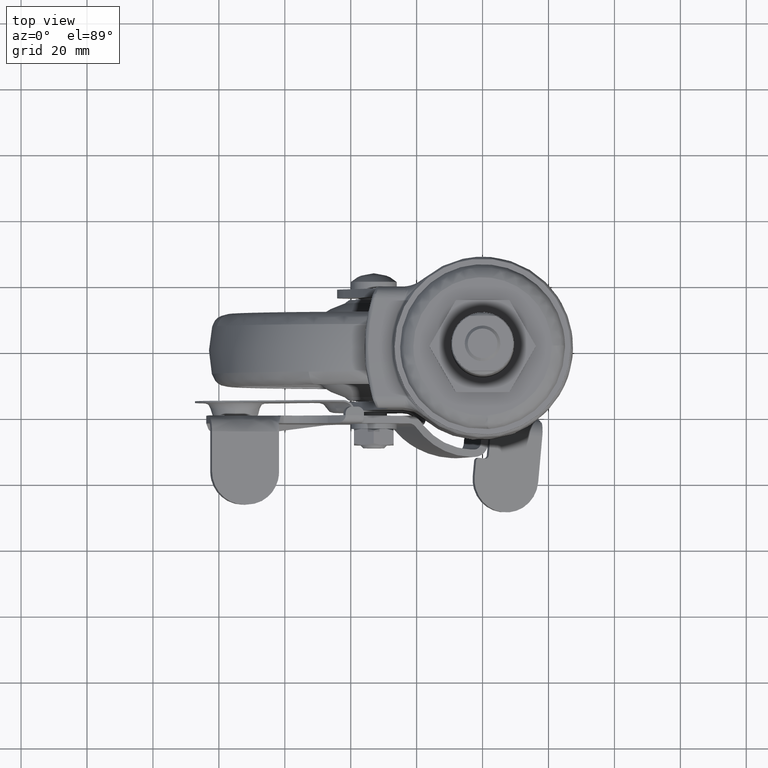
[diagram: clean part render]
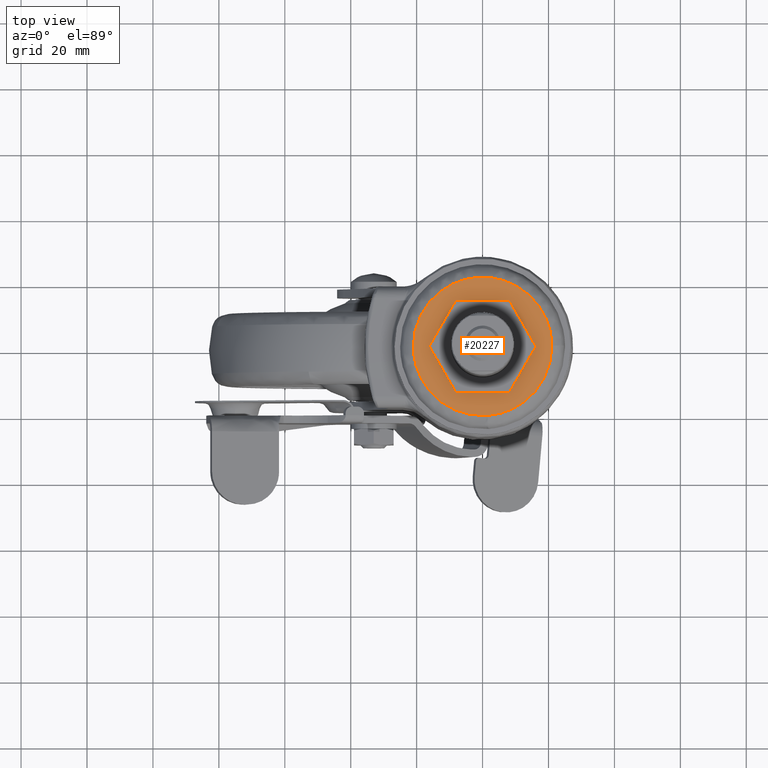
[diagram: same view with one face highlighted and labeled with its STEP entity id]
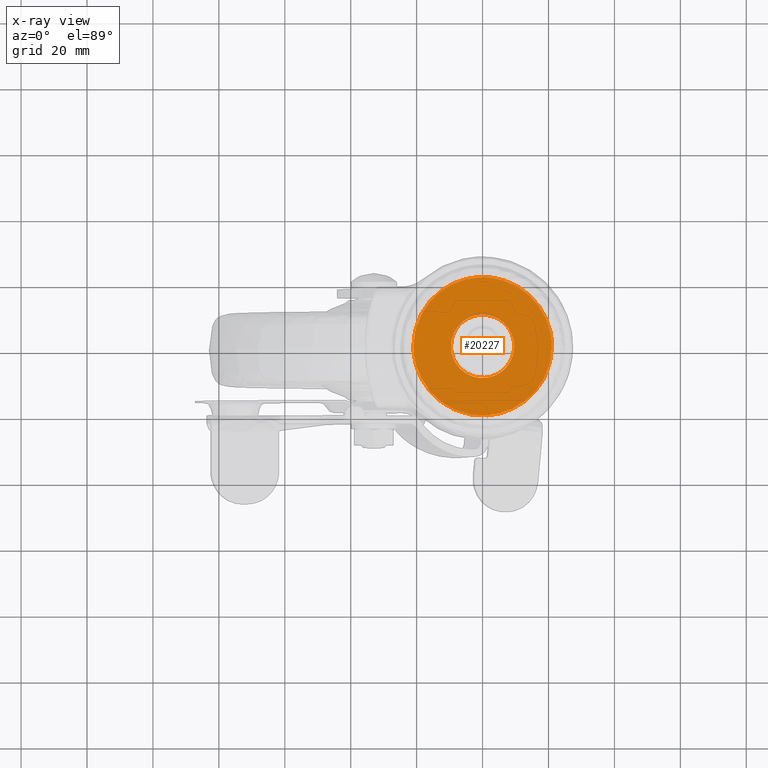
[diagram: x-ray of the same camera — body ghosted, the highlighted face saturated]
A machine part, top view. The second image highlights one B-rep face of the part: STEP entity #20227.
The next image is the same camera in x-ray: the body ghosted, the highlighted face saturated — about 1% of this face is hidden behind the body in this view.
In plain terms, the highlighted face is a freeform B-spline surface patch.
Its self-contained STEP definition (entity closure, byte-faithful):
#15587=CARTESIAN_POINT('',(-8.926698429834026,-3.531862843146473,-2.499304999999840));
#15588=VERTEX_POINT('',#15587);
#15594=CARTESIAN_POINT('',(0.753192596896211,-9.570407562468937,-2.499304999999839));
#15595=VERTEX_POINT('',#15594);
#15596=CARTESIAN_POINT('',(0.753192596896211,-9.570407562468937,-2.499304999999839));
#15597=CARTESIAN_POINT('',(0.377177632068906,-9.600000000000000,-2.499304999999839));
#15598=CARTESIAN_POINT('',(7.888609E-031,-9.600000000000000,-2.499304999999840));
#15599=CARTESIAN_POINT('',(-6.525830032624449,-9.600000000000000,-2.499304999999839));
#15600=CARTESIAN_POINT('',(-8.926698429834026,-3.531862843146472,-2.499304999999840));
#15608=(BOUNDED_CURVE()B_SPLINE_CURVE(2,(#15596,#15597,#15598,#15599,#15600),.UNSPECIFIED.,.F.,.U.)B_SPLINE_CURVE_WITH_KNOTS((3,2,3),(0.736331564333938,0.750000000000000,0.937532549938450),.UNSPECIFIED.)CURVE()GEOMETRIC_REPRESENTATION_ITEM()RATIONAL_B_SPLINE_CURVE((0.969723906496693,0.983986431526490,1.0,0.780291951264931,0.890203187500172))REPRESENTATION_ITEM(''));
#15609=EDGE_CURVE('',#15595,#15588,#15608,.T.);
#15703=CARTESIAN_POINT('',(9.600000000000000,0.0,-2.499304999999840));
#15704=VERTEX_POINT('',#15703);
#15705=CARTESIAN_POINT('',(9.600000000000000,0.0,-2.499304999999840));
#15706=CARTESIAN_POINT('',(9.600000000000000,-8.874162413181239,-2.499304999999840));
#15707=CARTESIAN_POINT('',(0.753192596896211,-9.570407562468937,-2.499304999999839));
#15715=(BOUNDED_CURVE()B_SPLINE_CURVE(2,(#15705,#15706,#15707),.UNSPECIFIED.,.F.,.U.)B_SPLINE_CURVE_WITH_KNOTS((3,3),(0.500000000000000,0.736331564333938),.UNSPECIFIED.)CURVE()GEOMETRIC_REPRESENTATION_ITEM()RATIONAL_B_SPLINE_CURVE((1.0,0.723120349660058,0.969723906496693))REPRESENTATION_ITEM(''));
#15716=EDGE_CURVE('',#15704,#15595,#15715,.T.);
#15718=CARTESIAN_POINT('',(-9.600000000000000,0.0,-2.499304999999840));
#15719=VERTEX_POINT('',#15718);
#15720=CARTESIAN_POINT('',(-9.600000000000000,0.0,-2.499304999999840));
#15721=CARTESIAN_POINT('',(-9.600000000000000,9.600000000000000,-2.499304999999840));
#15722=CARTESIAN_POINT('',(7.888609E-031,9.600000000000000,-2.499304999999840));
#15723=CARTESIAN_POINT('',(9.600000000000000,9.600000000000000,-2.499304999999840));
#15724=CARTESIAN_POINT('',(9.600000000000000,0.0,-2.499304999999840));
#15732=(BOUNDED_CURVE()B_SPLINE_CURVE(2,(#15720,#15721,#15722,#15723,#15724),.UNSPECIFIED.,.F.,.U.)B_SPLINE_CURVE_WITH_KNOTS((3,2,3),(0.0,0.250000000000000,0.500000000000000),.UNSPECIFIED.)CURVE()GEOMETRIC_REPRESENTATION_ITEM()RATIONAL_B_SPLINE_CURVE((1.0,0.707106781186547,1.0,0.707106781186547,1.0))REPRESENTATION_ITEM(''));
#15733=EDGE_CURVE('',#15719,#15704,#15732,.T.);
#15735=CARTESIAN_POINT('',(-8.926698429834026,-3.531862843146473,-2.499304999999840));
#15736=CARTESIAN_POINT('',(-9.600000000000000,-1.830109310782688,-2.499304999999840));
#15737=CARTESIAN_POINT('',(-9.600000000000000,0.0,-2.499304999999840));
#15745=(BOUNDED_CURVE()B_SPLINE_CURVE(2,(#15735,#15736,#15737),.UNSPECIFIED.,.F.,.U.)B_SPLINE_CURVE_WITH_KNOTS((3,3),(0.937532549938450,1.0),.UNSPECIFIED.)CURVE()GEOMETRIC_REPRESENTATION_ITEM()RATIONAL_B_SPLINE_CURVE((0.890203187500172,0.926814829921616,1.0))REPRESENTATION_ITEM(''));
#15746=EDGE_CURVE('',#15588,#15719,#15745,.T.);
#18544=CARTESIAN_POINT('',(1.464398285108659,-20.948879163375778,-2.499304999999881));
#18545=VERTEX_POINT('',#18544);
#18546=CARTESIAN_POINT('',(-21.0,0.0,-2.499304999999880));
#18547=VERTEX_POINT('',#18546);
#18548=CARTESIAN_POINT('',(1.464398285108658,-20.948879163375775,-2.499304999999882));
#18549=CARTESIAN_POINT('',(0.733091434502304,-20.999999999999996,-2.499304999999880));
#18550=CARTESIAN_POINT('',(0.0,-21.0,-2.499304999999880));
#18551=CARTESIAN_POINT('',(-21.000000000000007,-21.000000000000007,-2.499304999999880));
#18552=CARTESIAN_POINT('',(-21.0,0.0,-2.499304999999880));
#18560=(BOUNDED_CURVE()B_SPLINE_CURVE(2,(#18548,#18549,#18550,#18551,#18552),.UNSPECIFIED.,.F.,.U.)B_SPLINE_CURVE_WITH_KNOTS((3,2,3),(0.737833686516594,0.750000000000000,1.0),.UNSPECIFIED.)CURVE()GEOMETRIC_REPRESENTATION_ITEM()RATIONAL_B_SPLINE_CURVE((0.972879876347851,0.985746277131006,1.0,0.707106781186547,1.0))REPRESENTATION_ITEM(''));
#18561=EDGE_CURVE('',#18545,#18547,#18560,.T.);
#18563=CARTESIAN_POINT('',(20.998341934869320,0.263886838149581,-2.499304999999881));
#18564=VERTEX_POINT('',#18563);
#18565=CARTESIAN_POINT('',(-21.0,0.0,-2.499304999999880));
#18566=CARTESIAN_POINT('',(-21.000000000000007,21.000000000000007,-2.499304999999880));
#18567=CARTESIAN_POINT('',(0.0,21.0,-2.499304999999880));
#18568=CARTESIAN_POINT('',(20.737750527033732,21.000000000000007,-2.499304999999880));
#18569=CARTESIAN_POINT('',(20.998341934869320,0.263886838149581,-2.499304999999881));
#18577=(BOUNDED_CURVE()B_SPLINE_CURVE(2,(#18565,#18566,#18567,#18568,#18569),.UNSPECIFIED.,.F.,.U.)B_SPLINE_CURVE_WITH_KNOTS((3,2,3),(0.0,0.250000000000000,0.497784295913080),.UNSPECIFIED.)CURVE()GEOMETRIC_REPRESENTATION_ITEM()RATIONAL_B_SPLINE_CURVE((1.0,0.707106781186547,1.0,0.709702639994372,0.994854295624107))REPRESENTATION_ITEM(''));
#18578=EDGE_CURVE('',#18547,#18564,#18577,.T.);
#18662=CARTESIAN_POINT('',(21.0,0.0,-2.499304999999880));
#18663=VERTEX_POINT('',#18662);
#18664=CARTESIAN_POINT('',(21.0,0.0,-2.499304999999880));
#18665=CARTESIAN_POINT('',(21.000000000000007,-19.583273790482593,-2.499304999999880));
#18666=CARTESIAN_POINT('',(1.464398285108659,-20.948879163375775,-2.499304999999881));
#18674=(BOUNDED_CURVE()B_SPLINE_CURVE(2,(#18664,#18665,#18666),.UNSPECIFIED.,.F.,.U.)B_SPLINE_CURVE_WITH_KNOTS((3,3),(0.500000000000000,0.737833686516593),.UNSPECIFIED.)CURVE()GEOMETRIC_REPRESENTATION_ITEM()RATIONAL_B_SPLINE_CURVE((1.0,0.721360504055542,0.972879876347850))REPRESENTATION_ITEM(''));
#18675=EDGE_CURVE('',#18663,#18545,#18674,.T.);
#18707=CARTESIAN_POINT('',(20.998341934869323,0.263886838149581,-2.499304999999881));
#18708=CARTESIAN_POINT('',(20.999999999999996,0.131948628346042,-2.499304999999880));
#18709=CARTESIAN_POINT('',(21.0,0.0,-2.499304999999880));
#18717=(BOUNDED_CURVE()B_SPLINE_CURVE(2,(#18707,#18708,#18709),.UNSPECIFIED.,.F.,.U.)B_SPLINE_CURVE_WITH_KNOTS((3,3),(0.497784295913080,0.500000000000000),.UNSPECIFIED.)CURVE()GEOMETRIC_REPRESENTATION_ITEM()RATIONAL_B_SPLINE_CURVE((0.994854295624107,0.997404141192175,1.0))REPRESENTATION_ITEM(''));
#18718=EDGE_CURVE('',#18564,#18663,#18717,.T.);
#20210=CARTESIAN_POINT('',(23.097899918595850,-23.095364105629141,-2.499304999999880));
#20211=CARTESIAN_POINT('',(-23.097901045123638,-23.095364105629141,-2.499304999999880));
#20212=CARTESIAN_POINT('',(23.097899918595850,23.097347019528009,-2.499304999999880));
#20213=CARTESIAN_POINT('',(-23.097901045123638,23.097347019528009,-2.499304999999880));
#20214=B_SPLINE_SURFACE_WITH_KNOTS('',1,1,((#20210,#20212),(#20211,#20213)),.UNSPECIFIED.,.F.,.F.,.U.,(2,2),(2,2),(0.0,46.195800963719492),(0.0,46.192711125157153),.UNSPECIFIED.);
#20215=ORIENTED_EDGE('',*,*,#18561,.F.);
#20216=ORIENTED_EDGE('',*,*,#18675,.F.);
#20217=ORIENTED_EDGE('',*,*,#18718,.F.);
#20218=ORIENTED_EDGE('',*,*,#18578,.F.);
#20219=EDGE_LOOP('',(#20215,#20216,#20217,#20218));
#20220=FACE_OUTER_BOUND('',#20219,.T.);
#20221=ORIENTED_EDGE('',*,*,#15733,.T.);
#20222=ORIENTED_EDGE('',*,*,#15716,.T.);
#20223=ORIENTED_EDGE('',*,*,#15609,.T.);
#20224=ORIENTED_EDGE('',*,*,#15746,.T.);
#20225=EDGE_LOOP('',(#20221,#20222,#20223,#20224));
#20226=FACE_BOUND('',#20225,.T.);
#20227=ADVANCED_FACE('',(#20220,#20226),#20214,.F.);